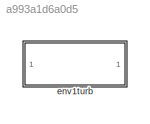
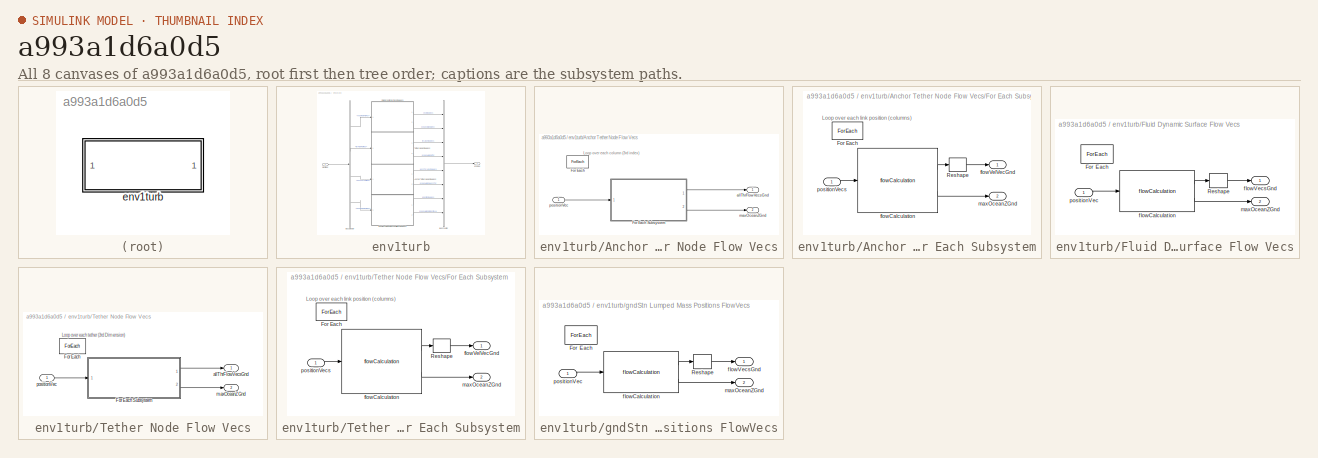
[diagram: thumbnail index - all 8 canvases of the model, root first then tree order]
MODEL slx_a993a1d6a0d5
KIND library
CONFIG AbsTol = auto
CONFIG EnableMultiTasking = off
CONFIG FixedStep = auto
CONFIG MaxStep = auto
CONFIG MinStep = auto
CONFIG RelTol = 1e-3
CONFIG SampleTimeConstraint = Unconstrained
CONFIG Solver = VariableStepAuto
CONFIG SolverName = VariableStepAuto
CONFIG StartTime = 0.0
CONFIG StopTime = 10.0
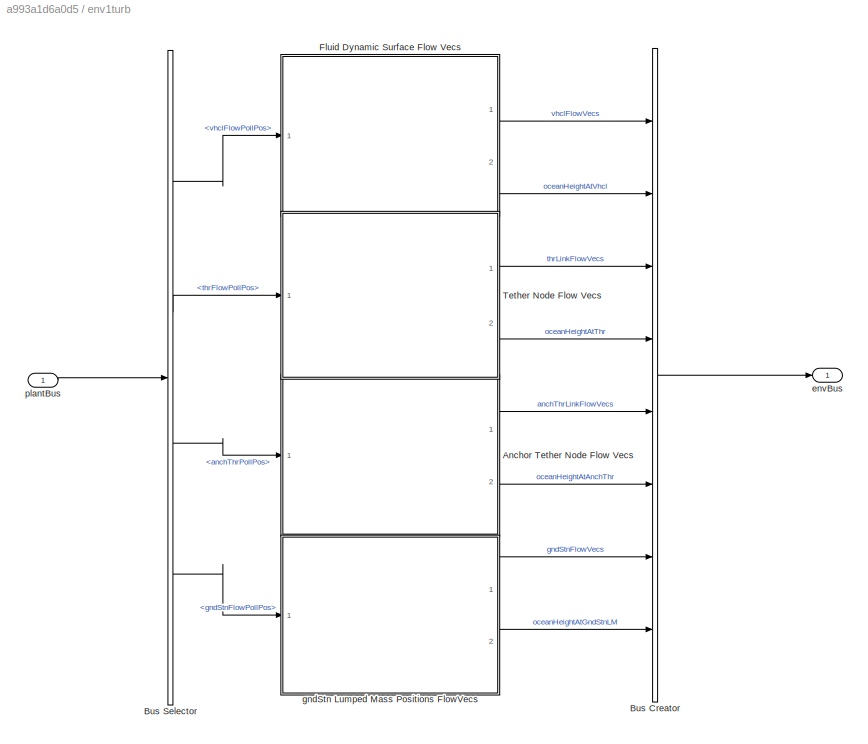
BLOCK [SubSystem] env1turb
  InitFcn = initializeBussesFromBlock(gcb)
  LoadFcn = initializeBussesFromBlock(gcb)
  MinAlgLoopOccurrences = on
  Ports = [1, 1]
  RequestExecContextInheritance = off
  StartFcn = initializeBussesFromBlock(gcb)
BLOCK [SubSystem] env1turb/Anchor Tether Node Flow Vecs
  Ports = [1, 2]
  RequestExecContextInheritance = off
BLOCK [ForEach] env1turb/Anchor Tether Node Flow Vecs/For Each
  DisableCoverage = on
  Ports = []
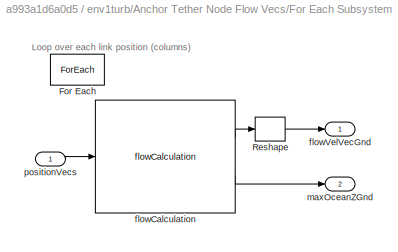
BLOCK [SubSystem] env1turb/Anchor Tether Node Flow Vecs/For Each Subsystem
  MinAlgLoopOccurrences = on
  Ports = [1, 2]
  RequestExecContextInheritance = off
BLOCK [ForEach] env1turb/Anchor Tether Node Flow Vecs/For Each Subsystem/For Each
  DisableCoverage = on
  Ports = []
BLOCK [Reshape] env1turb/Anchor Tether Node Flow Vecs/For Each Subsystem/Reshape
  OutputDimensionality = Column vector (2-D)
  Ports = [1, 1]
BLOCK [Reference] env1turb/Anchor Tether Node Flow Vecs/For Each Subsystem/flowCalculation  REF=flowcalculation_cl/flowCalculation
  Ports = [1, 2]
  SourceBlock = flowcalculation_cl/flowCalculation
  SourceType = SubSystem
BLOCK [Outport] env1turb/Anchor Tether Node Flow Vecs/For Each Subsystem/flowVelVecGnd
  ConcatenationDimension = 2
  VectorParamsAs1DForOutWhenUnconnected = off
BLOCK [Outport] env1turb/Anchor Tether Node Flow Vecs/For Each Subsystem/maxOceanZGnd
  ConcatenationDimension = 1
  Port = 2
  VectorParamsAs1DForOutWhenUnconnected = off
BLOCK [Inport] env1turb/Anchor Tether Node Flow Vecs/For Each Subsystem/positionVecs
  Partition = on
  PartitionDimension = 2
  PartitionOffset = 0
  PartitionWidth = 1
BLOCK [Outport] env1turb/Anchor Tether Node Flow Vecs/allThrFlowVecsGnd
  ConcatenationDimension = 3
  VectorParamsAs1DForOutWhenUnconnected = off
BLOCK [Outport] env1turb/Anchor Tether Node Flow Vecs/maxOceanZGnd
  ConcatenationDimension = 1
  Port = 2
  VectorParamsAs1DForOutWhenUnconnected = off
BLOCK [Inport] env1turb/Anchor Tether Node Flow Vecs/positionVec
  Partition = on
  PartitionDimension = 3
  PartitionOffset = 0
  PartitionWidth = 1
BLOCK [BusCreator] env1turb/Bus Creator
  DisplayOption = bar
  InheritFromInputs = on
  Inputs = 8
  NonVirtualBus = on
  OutDataTypeStr = Bus: envBus
  Ports = [8, 1]
BLOCK [BusSelector] env1turb/Bus Selector
  OutputSignals = vhclFlowPollPos,thrFlowPollPos,anchThrPollPos,gndStnFlowPollPos
  Ports = [1, 4]
BLOCK [SubSystem] env1turb/Fluid Dynamic Surface Flow Vecs
  MinAlgLoopOccurrences = on
  Ports = [1, 2]
  RequestExecContextInheritance = off
BLOCK [ForEach] env1turb/Fluid Dynamic Surface Flow Vecs/For Each
  DisableCoverage = on
  Ports = []
BLOCK [Reshape] env1turb/Fluid Dynamic Surface Flow Vecs/Reshape
  OutputDimensionality = Column vector (2-D)
  Ports = [1, 1]
BLOCK [Reference] env1turb/Fluid Dynamic Surface Flow Vecs/flowCalculation  REF=flowcalculation_cl/flowCalculation
  Ports = [1, 2]
  SourceBlock = flowcalculation_cl/flowCalculation
  SourceType = SubSystem
BLOCK [Outport] env1turb/Fluid Dynamic Surface Flow Vecs/flowVecsGnd
  ConcatenationDimension = 2
  VectorParamsAs1DForOutWhenUnconnected = off
BLOCK [Outport] env1turb/Fluid Dynamic Surface Flow Vecs/maxOceanZGnd
  ConcatenationDimension = 1
  Port = 2
  VectorParamsAs1DForOutWhenUnconnected = off
BLOCK [Inport] env1turb/Fluid Dynamic Surface Flow Vecs/positionVec
  Partition = on
  PartitionDimension = 2
  PartitionOffset = 0
  PartitionWidth = 1
BLOCK [SubSystem] env1turb/Tether Node Flow Vecs
  MinAlgLoopOccurrences = on
  Ports = [1, 2]
  RequestExecContextInheritance = off
BLOCK [ForEach] env1turb/Tether Node Flow Vecs/For Each
  DisableCoverage = on
  Ports = []
BLOCK [SubSystem] env1turb/Tether Node Flow Vecs/For Each Subsystem
  MinAlgLoopOccurrences = on
  Ports = [1, 2]
  RequestExecContextInheritance = off
BLOCK [ForEach] env1turb/Tether Node Flow Vecs/For Each Subsystem/For Each
  DisableCoverage = on
  Ports = []
BLOCK [Reshape] env1turb/Tether Node Flow Vecs/For Each Subsystem/Reshape
  OutputDimensionality = Column vector (2-D)
  Ports = [1, 1]
BLOCK [Reference] env1turb/Tether Node Flow Vecs/For Each Subsystem/flowCalculation  REF=flowcalculation_cl/flowCalculation
  Ports = [1, 2]
  SourceBlock = flowcalculation_cl/flowCalculation
  SourceType = SubSystem
BLOCK [Outport] env1turb/Tether Node Flow Vecs/For Each Subsystem/flowVelVecGnd
  ConcatenationDimension = 2
  VectorParamsAs1DForOutWhenUnconnected = off
BLOCK [Outport] env1turb/Tether Node Flow Vecs/For Each Subsystem/maxOceanZGnd
  ConcatenationDimension = 1
  Port = 2
  VectorParamsAs1DForOutWhenUnconnected = off
BLOCK [Inport] env1turb/Tether Node Flow Vecs/For Each Subsystem/positionVecs
  Partition = on
  PartitionDimension = 2
  PartitionOffset = 0
  PartitionWidth = 1
BLOCK [Outport] env1turb/Tether Node Flow Vecs/allThrFlowVecsGnd
  ConcatenationDimension = 3
  VectorParamsAs1DForOutWhenUnconnected = off
BLOCK [Outport] env1turb/Tether Node Flow Vecs/maxOceanZGnd
  ConcatenationDimension = 1
  Port = 2
  VectorParamsAs1DForOutWhenUnconnected = off
BLOCK [Inport] env1turb/Tether Node Flow Vecs/positionVec
  Partition = on
  PartitionDimension = 3
  PartitionOffset = 0
  PartitionWidth = 1
BLOCK [Outport] env1turb/envBus
  OutDataTypeStr = Bus: envBus
  VectorParamsAs1DForOutWhenUnconnected = off
BLOCK [SubSystem] env1turb/gndStn Lumped Mass Positions FlowVecs
  MinAlgLoopOccurrences = on
  Ports = [1, 2]
  RequestExecContextInheritance = off
BLOCK [ForEach] env1turb/gndStn Lumped Mass Positions FlowVecs/For Each
  DisableCoverage = on
  Ports = []
BLOCK [Reshape] env1turb/gndStn Lumped Mass Positions FlowVecs/Reshape
  OutputDimensionality = Column vector (2-D)
  Ports = [1, 1]
BLOCK [Reference] env1turb/gndStn Lumped Mass Positions FlowVecs/flowCalculation  REF=flowcalculation_cl/flowCalculation
  Ports = [1, 2]
  SourceBlock = flowcalculation_cl/flowCalculation
  SourceType = SubSystem
BLOCK [Outport] env1turb/gndStn Lumped Mass Positions FlowVecs/flowVecsGnd
  ConcatenationDimension = 2
  VectorParamsAs1DForOutWhenUnconnected = off
BLOCK [Outport] env1turb/gndStn Lumped Mass Positions FlowVecs/maxOceanZGnd
  ConcatenationDimension = 1
  Port = 2
  VectorParamsAs1DForOutWhenUnconnected = off
BLOCK [Inport] env1turb/gndStn Lumped Mass Positions FlowVecs/positionVec
  Partition = on
  PartitionDimension = 2
  PartitionOffset = 0
  PartitionWidth = 1
BLOCK [Inport] env1turb/plantBus
  OutDataTypeStr = Bus: plantBus
ANNOTATION env1turb/Anchor Tether Node Flow Vecs: Loop over each column (3rd index)
ANNOTATION env1turb/Anchor Tether Node Flow Vecs/For Each Subsystem: Loop over each link position (columns)
ANNOTATION env1turb/Tether Node Flow Vecs: Loop over each tether (3rd Dimension)
ANNOTATION env1turb/Tether Node Flow Vecs/For Each Subsystem: Loop over each link position (columns)
LINE env1turb/Anchor Tether Node Flow Vecs/For Each Subsystem/Reshape:1 -> env1turb/Anchor Tether Node Flow Vecs/For Each Subsystem/flowVelVecGnd:1
LINE env1turb/Anchor Tether Node Flow Vecs/For Each Subsystem/flowCalculation:1 -> env1turb/Anchor Tether Node Flow Vecs/For Each Subsystem/Reshape:1
LINE env1turb/Anchor Tether Node Flow Vecs/For Each Subsystem/flowCalculation:2 -> env1turb/Anchor Tether Node Flow Vecs/For Each Subsystem/maxOceanZGnd:1
LINE env1turb/Anchor Tether Node Flow Vecs/For Each Subsystem/positionVecs:1 -> env1turb/Anchor Tether Node Flow Vecs/For Each Subsystem/flowCalculation:1
LINE env1turb/Anchor Tether Node Flow Vecs/For Each Subsystem:1 -> env1turb/Anchor Tether Node Flow Vecs/allThrFlowVecsGnd:1
LINE env1turb/Anchor Tether Node Flow Vecs/For Each Subsystem:2 -> env1turb/Anchor Tether Node Flow Vecs/maxOceanZGnd:1
LINE env1turb/Anchor Tether Node Flow Vecs/positionVec:1 -> env1turb/Anchor Tether Node Flow Vecs/For Each Subsystem:1
LINE env1turb/Anchor Tether Node Flow Vecs:1 -> env1turb/Bus Creator:5
LINE env1turb/Anchor Tether Node Flow Vecs:2 -> env1turb/Bus Creator:6
LINE env1turb/Bus Creator:1 -> env1turb/envBus:1
LINE env1turb/Bus Selector:1 -> env1turb/Fluid Dynamic Surface Flow Vecs:1
LINE env1turb/Bus Selector:2 -> env1turb/Tether Node Flow Vecs:1
LINE env1turb/Bus Selector:3 -> env1turb/Anchor Tether Node Flow Vecs:1
LINE env1turb/Bus Selector:4 -> env1turb/gndStn Lumped Mass Positions FlowVecs:1
LINE env1turb/Fluid Dynamic Surface Flow Vecs/Reshape:1 -> env1turb/Fluid Dynamic Surface Flow Vecs/flowVecsGnd:1
LINE env1turb/Fluid Dynamic Surface Flow Vecs/flowCalculation:1 -> env1turb/Fluid Dynamic Surface Flow Vecs/Reshape:1
LINE env1turb/Fluid Dynamic Surface Flow Vecs/flowCalculation:2 -> env1turb/Fluid Dynamic Surface Flow Vecs/maxOceanZGnd:1
LINE env1turb/Fluid Dynamic Surface Flow Vecs/positionVec:1 -> env1turb/Fluid Dynamic Surface Flow Vecs/flowCalculation:1
LINE env1turb/Fluid Dynamic Surface Flow Vecs:1 -> env1turb/Bus Creator:1
LINE env1turb/Fluid Dynamic Surface Flow Vecs:2 -> env1turb/Bus Creator:2
LINE env1turb/Tether Node Flow Vecs/For Each Subsystem/Reshape:1 -> env1turb/Tether Node Flow Vecs/For Each Subsystem/flowVelVecGnd:1
LINE env1turb/Tether Node Flow Vecs/For Each Subsystem/flowCalculation:1 -> env1turb/Tether Node Flow Vecs/For Each Subsystem/Reshape:1
LINE env1turb/Tether Node Flow Vecs/For Each Subsystem/flowCalculation:2 -> env1turb/Tether Node Flow Vecs/For Each Subsystem/maxOceanZGnd:1
LINE env1turb/Tether Node Flow Vecs/For Each Subsystem/positionVecs:1 -> env1turb/Tether Node Flow Vecs/For Each Subsystem/flowCalculation:1
LINE env1turb/Tether Node Flow Vecs/For Each Subsystem:1 -> env1turb/Tether Node Flow Vecs/allThrFlowVecsGnd:1
LINE env1turb/Tether Node Flow Vecs/For Each Subsystem:2 -> env1turb/Tether Node Flow Vecs/maxOceanZGnd:1
LINE env1turb/Tether Node Flow Vecs/positionVec:1 -> env1turb/Tether Node Flow Vecs/For Each Subsystem:1
LINE env1turb/Tether Node Flow Vecs:1 -> env1turb/Bus Creator:3
LINE env1turb/Tether Node Flow Vecs:2 -> env1turb/Bus Creator:4
LINE env1turb/gndStn Lumped Mass Positions FlowVecs/Reshape:1 -> env1turb/gndStn Lumped Mass Positions FlowVecs/flowVecsGnd:1
LINE env1turb/gndStn Lumped Mass Positions FlowVecs/flowCalculation:1 -> env1turb/gndStn Lumped Mass Positions FlowVecs/Reshape:1
LINE env1turb/gndStn Lumped Mass Positions FlowVecs/flowCalculation:2 -> env1turb/gndStn Lumped Mass Positions FlowVecs/maxOceanZGnd:1
LINE env1turb/gndStn Lumped Mass Positions FlowVecs/positionVec:1 -> env1turb/gndStn Lumped Mass Positions FlowVecs/flowCalculation:1
LINE env1turb/gndStn Lumped Mass Positions FlowVecs:1 -> env1turb/Bus Creator:7
LINE env1turb/gndStn Lumped Mass Positions FlowVecs:2 -> env1turb/Bus Creator:8
LINE env1turb/plantBus:1 -> env1turb/Bus Selector:1
